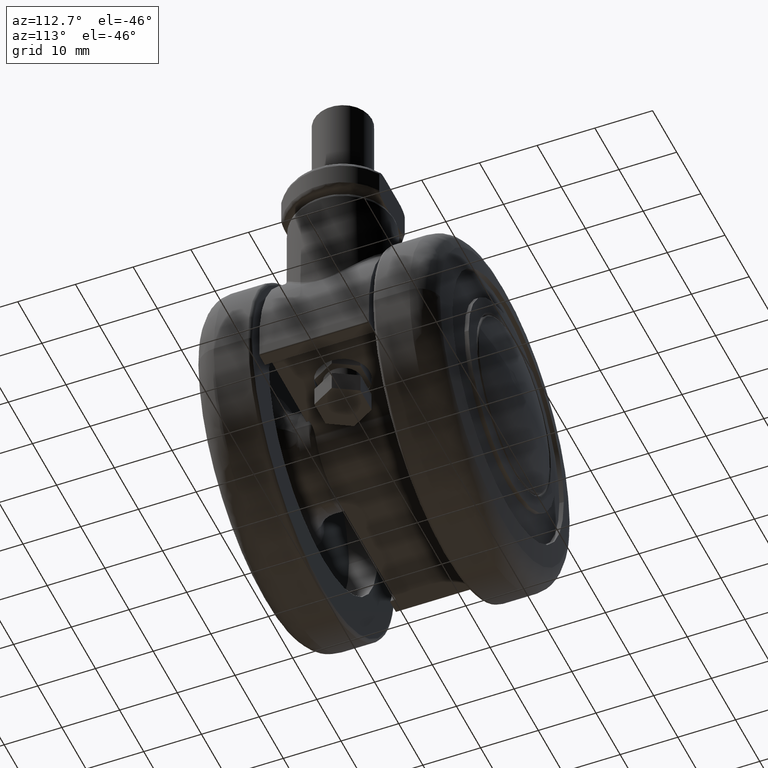
[diagram: clean part render]
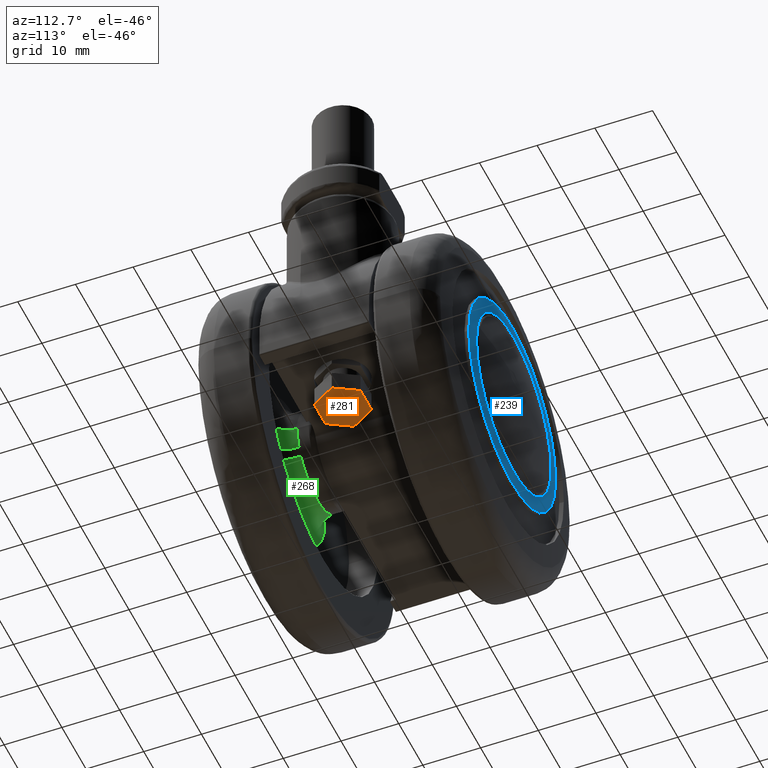
[diagram: same view with three faces highlighted in distinct colors, each labeled with its STEP entity id]
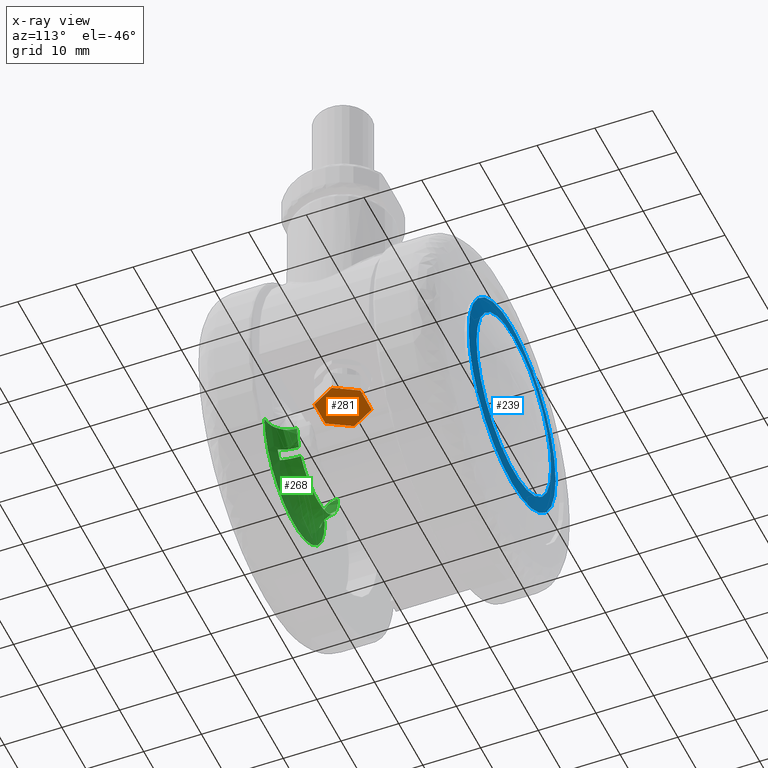
[diagram: x-ray of the same camera — body ghosted, the three highlighted faces saturated]
A machine part, auxiliary view with three faces highlighted in distinct colors.
The next image is the same camera in x-ray (body ghosted, the three faces saturated) — at least one of them is partly hidden behind the body in this view.
Their STEP definitions:

[orange] entity #281 — the highlighted planar face has unit normal (0, 0, 1).
#281=ADVANCED_FACE('',(#1554),#1553,.F.);
#1553=PLANE('',#4237);
#1554=FACE_OUTER_BOUND('',#4238,.T.);
#4234=CARTESIAN_POINT('',(4.03000000000E+01,-5.54256258422E+00,-4.80000000000E+00));
#4235=DIRECTION('',(-1.00000000000E+00,0.00000000000E+00,0.00000000000E+00));
#4236=DIRECTION('',(0.00000000000E+00,0.00000000000E+00,1.00000000000E+00));
#4237=AXIS2_PLACEMENT_3D('',#4234,#4235,#4236);
#4238=EDGE_LOOP('',(#5101,#5102,#5103,#5104,#5105,#5106));
#5101=ORIENTED_EDGE('',*,*,#5531,.F.);
#5102=ORIENTED_EDGE('',*,*,#5528,.F.);
#5103=ORIENTED_EDGE('',*,*,#5525,.F.);
#5104=ORIENTED_EDGE('',*,*,#5522,.F.);
#5105=ORIENTED_EDGE('',*,*,#5537,.F.);
#5106=ORIENTED_EDGE('',*,*,#5534,.F.);
#5522=EDGE_CURVE('',#7582,#7589,#7590,.T.);
#5525=EDGE_CURVE('',#7589,#7609,#7610,.T.);
#5528=EDGE_CURVE('',#7609,#7629,#7630,.T.);
#5531=EDGE_CURVE('',#7629,#7649,#7650,.T.);
#5534=EDGE_CURVE('',#7649,#7669,#7670,.T.);
#5537=EDGE_CURVE('',#7669,#7582,#7688,.T.);
#7582=VERTEX_POINT('',#9665);
#7589=VERTEX_POINT('',#9669);
#7590=LINE('',#9670,#9671);
#7609=VERTEX_POINT('',#9680);
#7610=LINE('',#9681,#9682);
#7629=VERTEX_POINT('',#9691);
#7630=LINE('',#9692,#9693);
#7649=VERTEX_POINT('',#9702);
#7650=LINE('',#9703,#9704);
#7669=VERTEX_POINT('',#9713);
#7670=LINE('',#9714,#9715);
#7688=LINE('',#9723,#9724);
#9665=CARTESIAN_POINT('',(4.03000000000E+01,2.30940107676E+00,4.00000000000E+00));
#9669=CARTESIAN_POINT('',(4.03000000000E+01,4.61880215352E+00,-1.58022466640E-14));
#9670=CARTESIAN_POINT('',(4.03000000000E+01,2.30940107676E+00,4.00000000000E+00));
#9671=VECTOR('',#9672,4.61880215352E+00);
#9672=DIRECTION('',(0.00000000000E+00,5.00000000000E-01,-8.66025403784E-01));
#9680=CARTESIAN_POINT('',(4.03000000000E+01,2.30940107676E+00,-4.00000000000E+00));
#9681=CARTESIAN_POINT('',(4.03000000000E+01,4.61880215352E+00,-1.58022466640E-14));
#9682=VECTOR('',#9683,4.61880215352E+00);
#9683=DIRECTION('',(0.00000000000E+00,-5.00000000000E-01,-8.66025403784E-01));
#9691=CARTESIAN_POINT('',(4.03000000000E+01,-2.30940107676E+00,-4.00000000000E+00));
#9692=CARTESIAN_POINT('',(4.03000000000E+01,2.30940107676E+00,-4.00000000000E+00));
#9693=VECTOR('',#9694,4.61880215352E+00);
#9694=DIRECTION('',(0.00000000000E+00,-1.00000000000E+00,3.55748096981E-15));
#9702=CARTESIAN_POINT('',(4.03000000000E+01,-4.61880215352E+00,1.66021763484E-14));
#9703=CARTESIAN_POINT('',(4.03000000000E+01,-2.30940107676E+00,-4.00000000000E+00));
#9704=VECTOR('',#9705,4.61880215352E+00);
#9705=DIRECTION('',(0.00000000000E+00,-5.00000000000E-01,8.66025403784E-01));
#9713=CARTESIAN_POINT('',(4.03000000000E+01,-2.30940107676E+00,4.00000000000E+00));
#9714=CARTESIAN_POINT('',(4.03000000000E+01,-4.61880215352E+00,1.66021763484E-14));
#9715=VECTOR('',#9716,4.61880215352E+00);
#9716=DIRECTION('',(0.00000000000E+00,5.00000000000E-01,8.66025403784E-01));
#9723=CARTESIAN_POINT('',(4.03000000000E+01,-2.30940107676E+00,4.00000000000E+00));
#9724=VECTOR('',#9725,4.61880215352E+00);
#9725=DIRECTION('',(0.00000000000E+00,1.00000000000E+00,-2.98059216389E-15));

[blue] entity #239 — the highlighted spherical surface has radius 150 mm.
#239=ADVANCED_FACE('',(#1131,#1132),#1130,.T.);
#1130=SPHERICAL_SURFACE('',#3577,1.50000000000E+02);
#1131=FACE_OUTER_BOUND('',#3578,.T.);
#1132=FACE_BOUND('',#3579,.T.);
#3574=CARTESIAN_POINT('',(0.00000000000E+00,0.00000000000E+00,-1.35210000000E+02));
#3575=DIRECTION('',(-1.00000000000E+00,0.00000000000E+00,0.00000000000E+00));
#3576=DIRECTION('',(-0.00000000000E+00,-1.20000000000E-01,9.92773891679E-01));
#3577=AXIS2_PLACEMENT_3D('',#3574,#3575,#3576);
#3578=EDGE_LOOP('',(#4900,#4901));
#3579=EDGE_LOOP('',(#4902,#4903,#4904));
#4900=ORIENTED_EDGE('',*,*,#5444,.T.);
#4901=ORIENTED_EDGE('',*,*,#5445,.T.);
#4902=ORIENTED_EDGE('',*,*,#5446,.T.);
#4903=ORIENTED_EDGE('',*,*,#5447,.T.);
#4904=ORIENTED_EDGE('',*,*,#5448,.T.);
#5444=EDGE_CURVE('',#7079,#7080,#7081,.T.);
#5445=EDGE_CURVE('',#7080,#7079,#7087,.T.);
#5446=EDGE_CURVE('',#7093,#7094,#7095,.T.);
#5447=EDGE_CURVE('',#7094,#7101,#7102,.T.);
#5448=EDGE_CURVE('',#7101,#7093,#7108,.T.);
#7079=VERTEX_POINT('',#9276);
#7080=VERTEX_POINT('',#9277);
#7081=CIRCLE('',#9281,1.80000000000E+01);
#7087=CIRCLE('',#9285,1.80000000000E+01);
#7093=VERTEX_POINT('',#9286);
#7094=VERTEX_POINT('',#9287);
#7095=CIRCLE('',#9291,1.54308617234E+01);
#7101=VERTEX_POINT('',#9292);
#7102=CIRCLE('',#9296,1.54308617234E+01);
#7108=CIRCLE('',#9300,1.54308617234E+01);
#9276=CARTESIAN_POINT('',(1.80000000000E+01,-4.40865567535E-15,1.37060837519E+01));
#9277=CARTESIAN_POINT('',(-1.80000000000E+01,1.18423789293E-15,1.37060837519E+01));
#9278=CARTESIAN_POINT('',(0.00000000000E+00,0.00000000000E+00,1.37060837519E+01));
#9279=DIRECTION('',(0.00000000000E+00,0.00000000000E+00,1.00000000000E+00));
#9280=DIRECTION('',(1.00000000000E+00,-1.22464679915E-16,-0.00000000000E+00));
#9281=AXIS2_PLACEMENT_3D('',#9278,#9279,#9280);
#9282=CARTESIAN_POINT('',(0.00000000000E+00,0.00000000000E+00,1.37060837519E+01));
#9283=DIRECTION('',(0.00000000000E+00,0.00000000000E+00,1.00000000000E+00));
#9284=DIRECTION('',(1.00000000000E+00,-1.22464679915E-16,-0.00000000000E+00));
#9285=AXIS2_PLACEMENT_3D('',#9282,#9283,#9284);
#9286=CARTESIAN_POINT('',(1.88967313115E-15,-1.54308617234E+01,1.39941839443E+01));
#9287=CARTESIAN_POINT('',(-1.54308616403E+01,1.60142647471E-03,1.39941839443E+01));
#9288=CARTESIAN_POINT('',(0.00000000000E+00,0.00000000000E+00,1.39941839443E+01));
#9289=DIRECTION('',(0.00000000000E+00,0.00000000000E+00,-1.00000000000E+00));
#9290=DIRECTION('',(-0.00000000000E+00,-1.00000000000E+00,-0.00000000000E+00));
#9291=AXIS2_PLACEMENT_3D('',#9288,#9289,#9290);
#9292=CARTESIAN_POINT('',(1.54308617234E+01,-5.40735557049E-10,1.39941839443E+01));
#9293=CARTESIAN_POINT('',(0.00000000000E+00,0.00000000000E+00,1.39941839443E+01));
#9294=DIRECTION('',(0.00000000000E+00,0.00000000000E+00,-1.00000000000E+00));
#9295=DIRECTION('',(-0.00000000000E+00,-1.00000000000E+00,-0.00000000000E+00));
#9296=AXIS2_PLACEMENT_3D('',#9293,#9294,#9295);
#9297=CARTESIAN_POINT('',(0.00000000000E+00,0.00000000000E+00,1.39941839443E+01));
#9298=DIRECTION('',(0.00000000000E+00,0.00000000000E+00,-1.00000000000E+00));
#9299=DIRECTION('',(-0.00000000000E+00,-1.00000000000E+00,-0.00000000000E+00));
#9300=AXIS2_PLACEMENT_3D('',#9297,#9298,#9299);

[green] entity #268 — the highlighted face is a freeform B-spline surface patch.
#268=ADVANCED_FACE('',(#1422),#1421,.F.);
#1421=( BOUNDED_SURFACE() B_SPLINE_SURFACE( 2,2,((#4125,#4126,#4127,#4128,#4129),(#4130,#4131,#4132,#4133,#4134),(#4135,#4136,#4137,#4138,#4139),(#4140,#4141,#4142,#4143,#4144),(#4145,#4146,#4147,#4148,#4149)), .UNSPECIFIED.,.F.,.F.,.F.) B_SPLINE_SURFACE_WITH_KNOTS((3,2,3),(3,2,3),(1.57079632680E+00,2.09441127550E+00,3.14164117290E+00),(3.14159265359E+00,4.71238898038E+00,6.28318530718E+00), .UNSPECIFIED. ) GEOMETRIC_REPRESENTATION_ITEM() RATIONAL_B_SPLINE_SURFACE(((9.33008658559E-01,6.59736749373E-01,9.33008658559E-01,6.59736749373E-01,9.33008658559E-01),(9.33008658559E-01,6.59736749373E-01,9.33008658559E-01,6.59736749373E-01,9.33008658559E-01),(1.00000000000E+00,7.07106781187E-01,1.00000000000E+00,7.07106781187E-01,1.00000000000E+00),(8.66017317119E-01,6.12366717560E-01,8.66017317119E-01,6.12366717560E-01,8.66017317119E-01),(1.00000000000E+00,7.07106781187E-01,1.00000000000E+00,7.07106781187E-01,1.00000000000E+00))) REPRESENTATION_ITEM('') SURFACE() );
#1422=FACE_OUTER_BOUND('',#4150,.T.);
#4125=CARTESIAN_POINT('',(1.25000000000E+01,-1.53075794228E-15,7.00000000000E+00));
#4126=CARTESIAN_POINT('',(1.25000000000E+01,-1.25000000000E+01,7.00000000000E+00));
#4127=CARTESIAN_POINT('',(-1.53075794228E-15,-1.25000000000E+01,7.00000000000E+00));
#4128=CARTESIAN_POINT('',(-1.25000000000E+01,-1.25000000000E+01,7.00000000000E+00));
#4129=CARTESIAN_POINT('',(-1.25000000000E+01,1.53075794228E-15,7.00000000000E+00));
#4130=CARTESIAN_POINT('',(1.14281685616E+01,-1.39950078331E-15,7.00000000000E+00));
#4131=CARTESIAN_POINT('',(1.14281685616E+01,-1.14281685616E+01,7.00000000000E+00));
#4132=CARTESIAN_POINT('',(-1.39950078331E-15,-1.14281685616E+01,7.00000000000E+00));
#4133=CARTESIAN_POINT('',(-1.14281685616E+01,-1.14281685616E+01,7.00000000000E+00));
#4134=CARTESIAN_POINT('',(-1.14281685616E+01,1.39950078331E-15,7.00000000000E+00));
#4135=CARTESIAN_POINT('',(1.04999439750E+01,-1.28582981065E-15,6.46406926847E+00));
#4136=CARTESIAN_POINT('',(1.04999439750E+01,-1.04999439750E+01,6.46406926847E+00));
#4137=CARTESIAN_POINT('',(-1.28582981065E-15,-1.04999439750E+01,6.46406926847E+00));
#4138=CARTESIAN_POINT('',(-1.04999439750E+01,-1.04999439750E+01,6.46406926847E+00));
#4139=CARTESIAN_POINT('',(-1.04999439750E+01,1.28582981065E-15,6.46406926847E+00));
#4140=CARTESIAN_POINT('',(8.49988794996E+00,-1.04090167903E-15,5.30929325415E+00));
#4141=CARTESIAN_POINT('',(8.49988794996E+00,-8.49988794996E+00,5.30929325415E+00));
#4142=CARTESIAN_POINT('',(-1.04090167903E-15,-8.49988794996E+00,5.30929325415E+00));
#4143=CARTESIAN_POINT('',(-8.49988794996E+00,-8.49988794996E+00,5.30929325415E+00));
#4144=CARTESIAN_POINT('',(-8.49988794996E+00,1.04090167903E-15,5.30929325415E+00));
#4145=CARTESIAN_POINT('',(8.50000000471E+00,-1.04091540133E-15,2.99980592274E+00));
#4146=CARTESIAN_POINT('',(8.50000000471E+00,-8.50000000471E+00,2.99980592274E+00));
#4147=CARTESIAN_POINT('',(-1.04091540133E-15,-8.50000000471E+00,2.99980592274E+00));
#4148=CARTESIAN_POINT('',(-8.50000000471E+00,-8.50000000471E+00,2.99980592274E+00));
#4149=CARTESIAN_POINT('',(-8.50000000471E+00,1.04091540133E-15,2.99980592274E+00));
#4150=EDGE_LOOP('',(#5029,#5030,#5031,#5032,#5033,#5034,#5035,#5036,#5037,#5038,#5039,#5040));
#5029=ORIENTED_EDGE('',*,*,#5432,.F.);
#5030=ORIENTED_EDGE('',*,*,#5492,.T.);
#5031=ORIENTED_EDGE('',*,*,#5472,.F.);
#5032=ORIENTED_EDGE('',*,*,#5410,.T.);
#5033=ORIENTED_EDGE('',*,*,#5451,.F.);
#5034=ORIENTED_EDGE('',*,*,#5408,.F.);
#5035=ORIENTED_EDGE('',*,*,#5471,.F.);
#5036=ORIENTED_EDGE('',*,*,#5413,.F.);
#5037=ORIENTED_EDGE('',*,*,#5407,.F.);
#5038=ORIENTED_EDGE('',*,*,#5412,.T.);
#5039=ORIENTED_EDGE('',*,*,#5470,.F.);
#5040=ORIENTED_EDGE('',*,*,#5493,.F.);
#5407=EDGE_CURVE('',#6814,#6815,#6822,.T.);
#5408=EDGE_CURVE('',#6828,#6829,#6830,.T.);
#5410=EDGE_CURVE('',#6843,#6836,#6844,.T.);
#5412=EDGE_CURVE('',#6814,#6856,#6857,.T.);
#5413=EDGE_CURVE('',#6815,#6863,#6864,.T.);
#5432=EDGE_CURVE('',#6989,#6988,#6996,.T.);
#5451=EDGE_CURVE('',#6829,#6836,#7128,.T.);
#5470=EDGE_CURVE('',#7237,#6856,#7250,.T.);
#5471=EDGE_CURVE('',#6863,#6828,#7256,.T.);
#5472=EDGE_CURVE('',#6843,#7224,#7262,.T.);
#5492=EDGE_CURVE('',#6989,#7224,#7386,.T.);
#5493=EDGE_CURVE('',#6988,#7237,#7392,.T.);
#6814=VERTEX_POINT('',#9071);
#6815=VERTEX_POINT('',#9072);
#6822=CIRCLE('',#9086,1.00000000000E+01);
#6828=VERTEX_POINT('',#9087);
#6829=VERTEX_POINT('',#9088);
#6830=CIRCLE('',#9092,4.00000000000E+00);
#6836=VERTEX_POINT('',#9093);
#6843=VERTEX_POINT('',#9104);
#6844=CIRCLE('',#9108,4.00000000000E+00);
#6856=VERTEX_POINT('',#9115);
#6857=CIRCLE('',#9119,4.00000000000E+00);
#6863=VERTEX_POINT('',#9120);
#6864=CIRCLE('',#9124,4.00000000000E+00);
#6988=VERTEX_POINT('',#9211);
#6989=VERTEX_POINT('',#9212);
#6996=CIRCLE('',#9220,1.25000000000E+01);
#7128=CIRCLE('',#9320,1.00000000000E+01);
#7224=VERTEX_POINT('',#9375);
#7237=VERTEX_POINT('',#9382);
#7250=CIRCLE('',#9392,8.50000000000E+00);
#7256=CIRCLE('',#9396,8.50000000000E+00);
#7262=CIRCLE('',#9400,8.50000000000E+00);
#7386=(BOUNDED_CURVE() B_SPLINE_CURVE(2,(#9462,#9463,#9464,#9465,#9466),.UNSPECIFIED.,.F.,.F.) B_SPLINE_CURVE_WITH_KNOTS((3,2,3),(1.57079632679E+00,2.09441127550E+00,3.14159037102E+00),.UNSPECIFIED.) CURVE() GEOMETRIC_REPRESENTATION_ITEM() RATIONAL_B_SPLINE_CURVE((9.33008658559E-01,9.33008658559E-01,1.00000000000E+00,8.66023816717E-01,9.99987001435E-01)) REPRESENTATION_ITEM('') );
#7392=(BOUNDED_CURVE() B_SPLINE_CURVE(2,(#9467,#9468,#9469,#9470,#9471),.UNSPECIFIED.,.F.,.F.) B_SPLINE_CURVE_WITH_KNOTS((3,2,3),(1.57079632679E+00,2.09441127550E+00,3.14164117290E+00),.UNSPECIFIED.) CURVE() GEOMETRIC_REPRESENTATION_ITEM() RATIONAL_B_SPLINE_CURVE((9.33008658559E-01,9.33008658559E-01,1.00000000000E+00,8.66017317119E-01,1.00000000000E+00)) REPRESENTATION_ITEM('') );
#9071=CARTESIAN_POINT('',(9.07786944612E+00,-4.19431595366E+00,6.12249899920E+00));
#9072=CARTESIAN_POINT('',(8.17131889043E+00,-5.76450757575E+00,6.12249899920E+00));
#9083=CARTESIAN_POINT('',(0.00000000000E+00,0.00000000000E+00,6.12249899920E+00));
#9084=DIRECTION('',(-0.00000000000E+00,0.00000000000E+00,-1.00000000000E+00));
#9085=DIRECTION('',(1.00000000000E+00,-0.00000000000E+00,-0.00000000000E+00));
#9086=AXIS2_PLACEMENT_3D('',#9083,#9084,#9085);
#9087=CARTESIAN_POINT('',(-6.94562105686E+00,-4.89983143939E+00,3.00000000000E+00));
#9088=CARTESIAN_POINT('',(-8.17131889043E+00,-5.76450757575E+00,6.12249899920E+00));
#9089=CARTESIAN_POINT('',(-1.02141486130E+01,-7.20563446969E+00,3.00000000000E+00));
#9090=DIRECTION('',(5.76450757575E-01,-8.17131889043E-01,-1.04378802245E-16));
#9091=DIRECTION('',(-8.17131889043E-01,-5.76450757575E-01,-2.68673971959E-14));
#9092=AXIS2_PLACEMENT_3D('',#9089,#9090,#9091);
#9093=CARTESIAN_POINT('',(-9.07786944613E+00,-4.19431595366E+00,6.12249899920E+00));
#9104=CARTESIAN_POINT('',(-7.71618902921E+00,-3.56516856061E+00,3.00000000000E+00));
#9105=CARTESIAN_POINT('',(-1.13473368077E+01,-5.24289494207E+00,3.00000000000E+00));
#9106=DIRECTION('',(4.19431595366E-01,-9.07786944613E-01,-2.80002669275E-16));
#9107=DIRECTION('',(-9.07786944613E-01,-4.19431595366E-01,2.68673971959E-14));
#9108=AXIS2_PLACEMENT_3D('',#9105,#9106,#9107);
#9115=CARTESIAN_POINT('',(7.71618902921E+00,-3.56516856061E+00,3.00000000000E+00));
#9116=CARTESIAN_POINT('',(1.13473368077E+01,-5.24289494207E+00,3.00000000000E+00));
#9117=DIRECTION('',(-4.19431595366E-01,-9.07786944612E-01,2.61861919781E-13));
#9118=DIRECTION('',(-5.19584375525E-14,-2.64455124466E-13,-1.00000000000E+00));
#9119=AXIS2_PLACEMENT_3D('',#9116,#9117,#9118);
#9120=CARTESIAN_POINT('',(6.94562105686E+00,-4.89983143939E+00,3.00000000000E+00));
#9121=CARTESIAN_POINT('',(1.02141486130E+01,-7.20563446969E+00,3.00000000000E+00));
#9122=DIRECTION('',(-5.76450757575E-01,-8.17131889043E-01,0.00000000000E+00));
#9123=DIRECTION('',(-0.00000000000E+00,-0.00000000000E+00,-1.00000000000E+00));
#9124=AXIS2_PLACEMENT_3D('',#9121,#9122,#9123);
#9211=CARTESIAN_POINT('',(1.25000000000E+01,0.00000000000E+00,7.00000000000E+00));
#9212=CARTESIAN_POINT('',(-1.25000000000E+01,0.00000000000E+00,7.00000000000E+00));
#9217=CARTESIAN_POINT('',(0.00000000000E+00,0.00000000000E+00,7.00000000000E+00));
#9218=DIRECTION('',(0.00000000000E+00,0.00000000000E+00,1.00000000000E+00));
#9219=DIRECTION('',(1.00000000000E+00,-1.22460635382E-16,0.00000000000E+00));
#9220=AXIS2_PLACEMENT_3D('',#9217,#9218,#9219);
#9317=CARTESIAN_POINT('',(0.00000000000E+00,0.00000000000E+00,6.12249899920E+00));
#9318=DIRECTION('',(-0.00000000000E+00,0.00000000000E+00,-1.00000000000E+00));
#9319=DIRECTION('',(1.00000000000E+00,-0.00000000000E+00,-0.00000000000E+00));
#9320=AXIS2_PLACEMENT_3D('',#9317,#9318,#9319);
#9375=CARTESIAN_POINT('',(-8.50000000000E+00,2.68219846214E-07,3.00000000000E+00));
#9382=CARTESIAN_POINT('',(8.49999863885E+00,4.81035715597E-03,3.00000000000E+00));
#9389=CARTESIAN_POINT('',(0.00000000000E+00,0.00000000000E+00,3.00000000000E+00));
#9390=DIRECTION('',(0.00000000000E+00,0.00000000000E+00,-1.00000000000E+00));
#9391=DIRECTION('',(-9.06550555697E-02,-9.95882352941E-01,-0.00000000000E+00));
#9392=AXIS2_PLACEMENT_3D('',#9389,#9390,#9391);
#9393=CARTESIAN_POINT('',(0.00000000000E+00,0.00000000000E+00,3.00000000000E+00));
#9394=DIRECTION('',(0.00000000000E+00,0.00000000000E+00,-1.00000000000E+00));
#9395=DIRECTION('',(-8.17131889043E-01,5.76450757575E-01,-0.00000000000E+00));
#9396=AXIS2_PLACEMENT_3D('',#9393,#9394,#9395);
#9397=CARTESIAN_POINT('',(0.00000000000E+00,0.00000000000E+00,3.00000000000E+00));
#9398=DIRECTION('',(0.00000000000E+00,0.00000000000E+00,-1.00000000000E+00));
#9399=DIRECTION('',(1.00000000000E+00,-1.22464679915E-16,-0.00000000000E+00));
#9400=AXIS2_PLACEMENT_3D('',#9397,#9398,#9399);
#9462=CARTESIAN_POINT('',(-1.25000000000E+01,1.53075794228E-15,7.00000000000E+00));
#9463=CARTESIAN_POINT('',(-1.14281685616E+01,1.39950078331E-15,7.00000000000E+00));
#9464=CARTESIAN_POINT('',(-1.04999439750E+01,1.28582981065E-15,6.46406926847E+00));
#9465=CARTESIAN_POINT('',(-8.49999998404E+00,1.04091539879E-15,5.30935793947E+00));
#9466=CARTESIAN_POINT('',(-8.50000000000E+00,1.04091540075E-15,2.99999997236E+00));
#9467=CARTESIAN_POINT('',(1.25000000000E+01,-1.53075794228E-15,7.00000000000E+00));
#9468=CARTESIAN_POINT('',(1.14281685616E+01,-1.39950078331E-15,7.00000000000E+00));
#9469=CARTESIAN_POINT('',(1.04999439750E+01,-1.28582981065E-15,6.46406926847E+00));
#9470=CARTESIAN_POINT('',(8.49988794996E+00,-1.04090167903E-15,5.30929325415E+00));
#9471=CARTESIAN_POINT('',(8.50000000471E+00,-1.04091540133E-15,2.99980592274E+00));